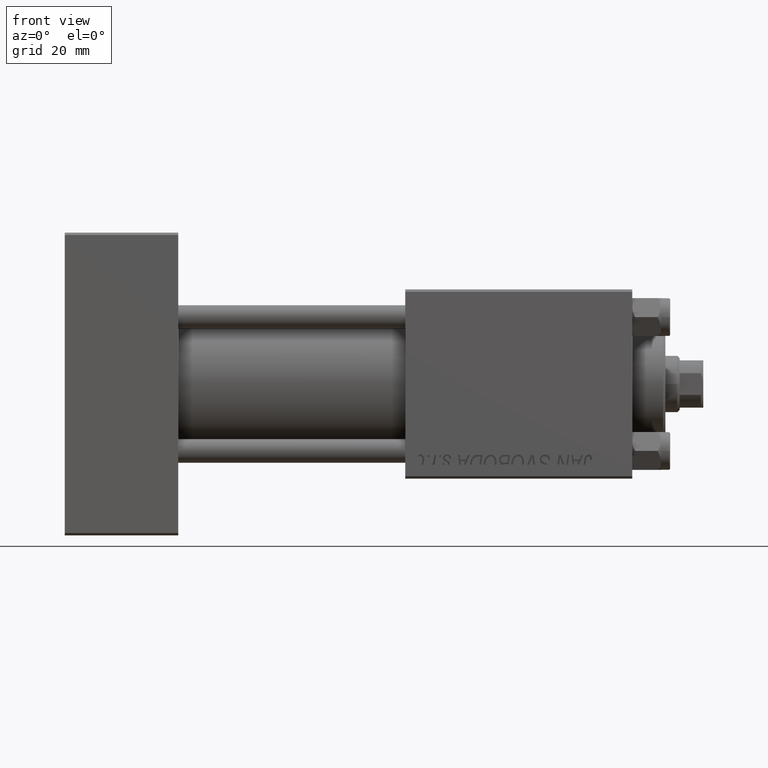
[diagram: clean part render]
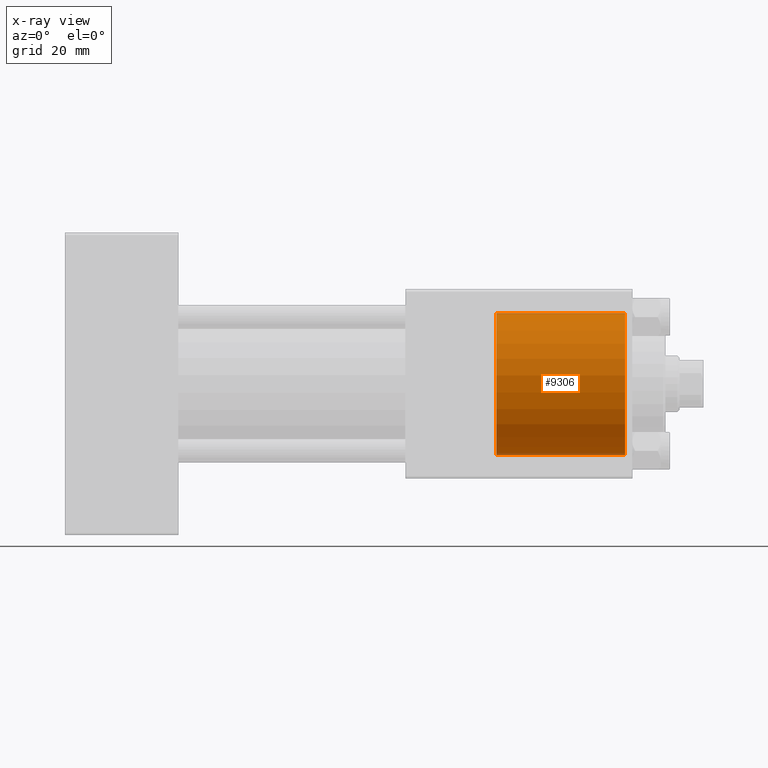
[diagram: x-ray — body ghosted, one internal face saturated and labeled with its STEP entity id]
A machine part, front view, then the same camera in x-ray: the body is ghosted and one INTERNAL B-rep face — a face not visible from any outside direction — is saturated and labeled: STEP entity #9306.
In plain terms, the highlighted cylindrical surface (partial cylindrical patch) has radius 15 mm, axis along (1, 0, 0).
Its self-contained STEP definition (entity closure, byte-faithful):
#503 = VECTOR ( 'NONE', #27445, 1000.000000000000000 ) ;
#701 = CYLINDRICAL_SURFACE ( 'NONE', #9273, 15.00000000000000000 ) ;
#1054 = DIRECTION ( 'NONE',  ( 0.000000000000000000, 0.000000000000000000, 1.000000000000000000 ) ) ;
#2002 = VERTEX_POINT ( 'NONE', #16069 ) ;
#3277 = CIRCLE ( 'NONE', #31493, 15.00000000000000000 ) ;
#5289 = DIRECTION ( 'NONE',  ( 1.000000000000000000, 0.000000000000000000, 0.000000000000000000 ) ) ;
#7111 = ORIENTED_EDGE ( 'NONE', *, *, #40184, .F. ) ;
#7992 = DIRECTION ( 'NONE',  ( 0.000000000000000000, 0.000000000000000000, -1.000000000000000000 ) ) ;
#8398 = CARTESIAN_POINT ( 'NONE',  ( 118.5000000000000000, 1.836970198721029589E-15, 15.00000000000000000 ) ) ;
#9273 = AXIS2_PLACEMENT_3D ( 'NONE', #46150, #12278, #7992 ) ;
#9306 = ADVANCED_FACE ( 'NONE', ( #38841 ), #701, .F. ) ;
#9836 = DIRECTION ( 'NONE',  ( 1.000000000000000000, -0.000000000000000000, -0.000000000000000000 ) ) ;
#12278 = DIRECTION ( 'NONE',  ( 1.000000000000000000, -0.000000000000000000, -0.000000000000000000 ) ) ;
#14127 = CARTESIAN_POINT ( 'NONE',  ( 91.30000000000001137, 1.836970198721029589E-15, 15.00000000000000000 ) ) ;
#16069 = CARTESIAN_POINT ( 'NONE',  ( 91.30000000000001137, 0.000000000000000000, -15.00000000000000000 ) ) ;
#19266 = CIRCLE ( 'NONE', #48286, 15.00000000000000000 ) ;
#20041 = EDGE_CURVE ( 'NONE', #23674, #34164, #44211, .T. ) ;
#20702 = CARTESIAN_POINT ( 'NONE',  ( 91.30000000000001137, 0.000000000000000000, 0.000000000000000000 ) ) ;
#21537 = EDGE_CURVE ( 'NONE', #2002, #39409, #43089, .T. ) ;
#23674 = VERTEX_POINT ( 'NONE', #34561 ) ;
#24621 = VECTOR ( 'NONE', #9836, 1000.000000000000000 ) ;
#25735 = ORIENTED_EDGE ( 'NONE', *, *, #21537, .F. ) ;
#26071 = ORIENTED_EDGE ( 'NONE', *, *, #20041, .T. ) ;
#27445 = DIRECTION ( 'NONE',  ( 1.000000000000000000, -0.000000000000000000, -0.000000000000000000 ) ) ;
#29038 = DIRECTION ( 'NONE',  ( 0.000000000000000000, 0.000000000000000000, -1.000000000000000000 ) ) ;
#31361 = DIRECTION ( 'NONE',  ( 1.000000000000000000, 0.000000000000000000, 0.000000000000000000 ) ) ;
#31493 = AXIS2_PLACEMENT_3D ( 'NONE', #20702, #5289, #29038 ) ;
#32524 = EDGE_CURVE ( 'NONE', #34164, #39409, #19266, .T. ) ;
#32641 = EDGE_LOOP ( 'NONE', ( #7111, #26071, #49715, #25735 ) ) ;
#34164 = VERTEX_POINT ( 'NONE', #8398 ) ;
#34561 = CARTESIAN_POINT ( 'NONE',  ( 91.30000000000001137, 1.836970198721029589E-15, 15.00000000000000000 ) ) ;
#35649 = CARTESIAN_POINT ( 'NONE',  ( 118.5000000000000000, 0.000000000000000000, 0.000000000000000000 ) ) ;
#35772 = CARTESIAN_POINT ( 'NONE',  ( 91.30000000000001137, 0.000000000000000000, -15.00000000000000000 ) ) ;
#38061 = CARTESIAN_POINT ( 'NONE',  ( 118.5000000000000000, 0.000000000000000000, -15.00000000000000000 ) ) ;
#38841 = FACE_OUTER_BOUND ( 'NONE', #32641, .T. ) ;
#39409 = VERTEX_POINT ( 'NONE', #38061 ) ;
#40184 = EDGE_CURVE ( 'NONE', #23674, #2002, #3277, .T. ) ;
#43089 = LINE ( 'NONE', #35772, #503 ) ;
#44211 = LINE ( 'NONE', #14127, #24621 ) ;
#46150 = CARTESIAN_POINT ( 'NONE',  ( 91.30000000000001137, 0.000000000000000000, 0.000000000000000000 ) ) ;
#48286 = AXIS2_PLACEMENT_3D ( 'NONE', #35649, #31361, #1054 ) ;
#49715 = ORIENTED_EDGE ( 'NONE', *, *, #32524, .T. ) ;